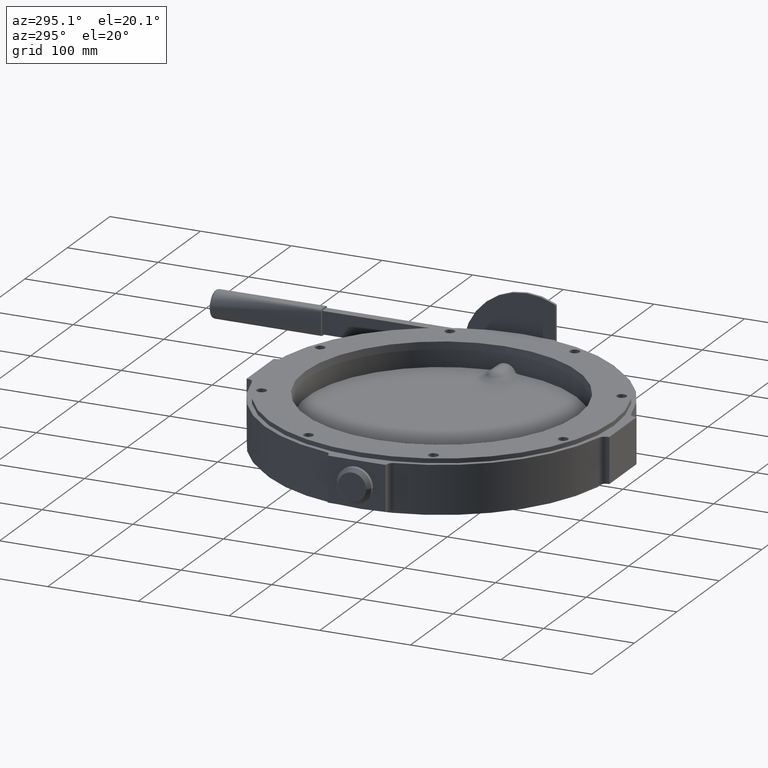
[diagram: clean part render]
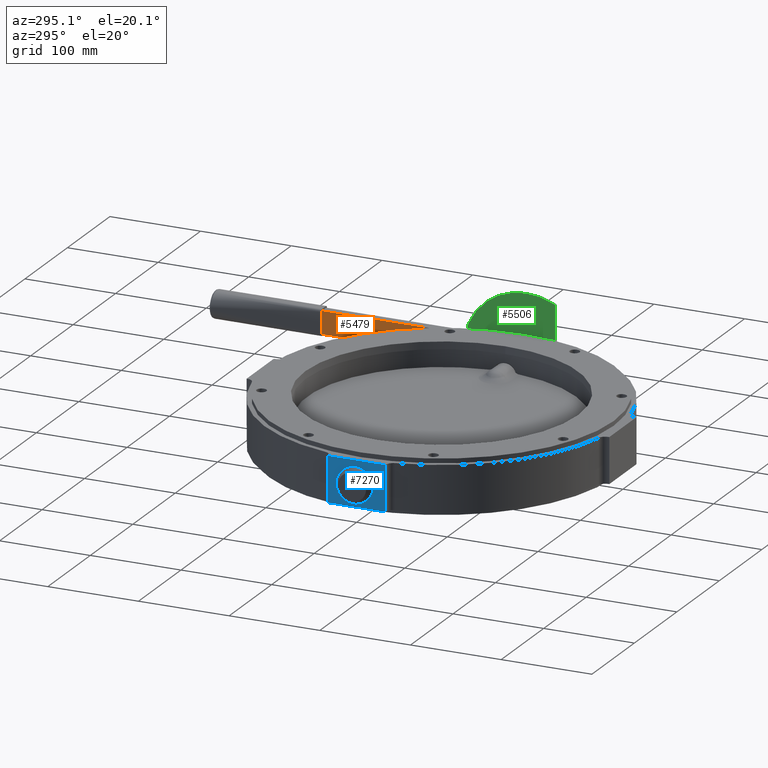
[diagram: same view with three faces highlighted in distinct colors, each labeled with its STEP entity id]
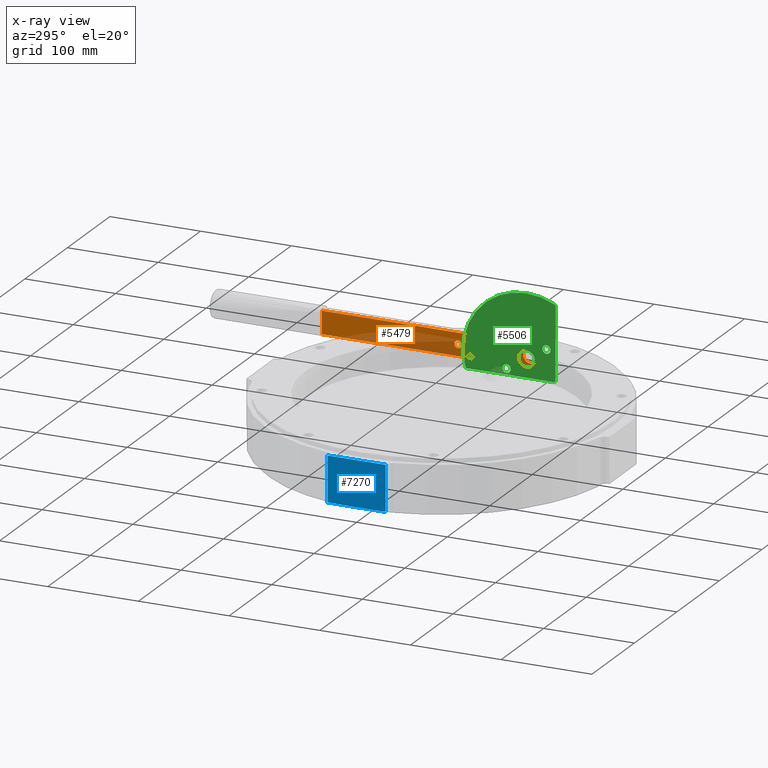
[diagram: x-ray of the same camera — body ghosted, the three highlighted faces saturated]
A machine part, auxiliary view with three faces highlighted in distinct colors.
The next image is the same camera in x-ray (body ghosted, the three faces saturated) — at least one of them is partly hidden behind the body in this view.
Their STEP definitions:

[orange] entity #5479 — the highlighted planar face has unit normal (1, 0, -0).
#870 = CARTESIAN_POINT ( 'NONE',  ( 209.4499999999999600, 229.9999999999999700, -12.50000000000000700 ) ) ;
#966 = CARTESIAN_POINT ( 'NONE',  ( 209.4500000000000200, 2.718098515041928400E-014, 12.50000000000001400 ) ) ;
#967 = CARTESIAN_POINT ( 'NONE',  ( 209.4500000000000200, 2.718098515041928400E-014, -12.50000000000002500 ) ) ;
#968 = CARTESIAN_POINT ( 'NONE',  ( 209.4499999999999600, 229.9999999999999700, 12.49999999999999600 ) ) ;
#1496 = VERTEX_POINT ( 'NONE', #1499 ) ;
#1498 = VERTEX_POINT ( 'NONE', #1501 ) ;
#1499 = CARTESIAN_POINT ( 'NONE',  ( 209.4500000000000200, 8.000000000000026600, -3.132754484151533400E-015 ) ) ;
#1500 = VERTEX_POINT ( 'NONE', #1503 ) ;
#1501 = CARTESIAN_POINT ( 'NONE',  ( 209.4500000000000200, 76.00000000000002800, -2.097046512262091200E-015 ) ) ;
#1503 = CARTESIAN_POINT ( 'NONE',  ( 209.4500000000000200, 58.00000000000002100, -4.880293244369943600E-015 ) ) ;
#2187 = FACE_BOUND ( 'NONE', #6375, .T. ) ;
#2189 = DIRECTION ( 'NONE',  ( 1.000000000000000000, 1.224646799147353000E-016, -2.330051680291211600E-017 ) ) ;
#2192 = PLANE ( 'NONE',  #6088 ) ;
#2193 = FACE_BOUND ( 'NONE', #6381, .T. ) ;
#2195 = CARTESIAN_POINT ( 'NONE',  ( 209.4500000000000200, 2.565022720814131000E-014, -4.880293244369943600E-015 ) ) ;
#2196 = FACE_BOUND ( 'NONE', #6285, .T. ) ;
#2198 = FACE_OUTER_BOUND ( 'NONE', #6269, .T. ) ;
#2199 = DIRECTION ( 'NONE',  ( -1.224646799147353000E-016, 1.000000000000000000, 0.0000000000000000000 ) ) ;
#3025 = AXIS2_PLACEMENT_3D ( 'NONE', #10534, #10535, #10536 ) ;
#3026 = VECTOR ( 'NONE', #10540, 1000.000000000000000 ) ;
#3027 = VECTOR ( 'NONE', #10544, 1000.000000000000000 ) ;
#3028 = CIRCLE ( 'NONE', #3065, 12.50000000000002000 ) ;
#3060 = CIRCLE ( 'NONE', #3061, 4.000000000000003600 ) ;
#3061 = AXIS2_PLACEMENT_3D ( 'NONE', #10530, #10531, #10532 ) ;
#3063 = CIRCLE ( 'NONE', #3025, 5.000000000000004400 ) ;
#3064 = VECTOR ( 'NONE', #10538, 1000.000000000000000 ) ;
#3065 = AXIS2_PLACEMENT_3D ( 'NONE', #10541, #10542, #10543 ) ;
#5479 = ADVANCED_FACE ( 'NONE', ( #2193, #2187, #2196, #2198 ), #2192, .F. ) ;
#5590 = ORIENTED_EDGE ( 'NONE', *, *, #6943, .F. ) ;
#5591 = ORIENTED_EDGE ( 'NONE', *, *, #6941, .T. ) ;
#5592 = ORIENTED_EDGE ( 'NONE', *, *, #6942, .F. ) ;
#6088 = AXIS2_PLACEMENT_3D ( 'NONE', #2195, #2189, #2199 ) ;
#6269 = EDGE_LOOP ( 'NONE', ( #6337, #6338, #6333, #6331 ) ) ;
#6285 = EDGE_LOOP ( 'NONE', ( #5590 ) ) ;
#6331 = ORIENTED_EDGE ( 'NONE', *, *, #6947, .F. ) ;
#6333 = ORIENTED_EDGE ( 'NONE', *, *, #6946, .F. ) ;
#6337 = ORIENTED_EDGE ( 'NONE', *, *, #6944, .F. ) ;
#6338 = ORIENTED_EDGE ( 'NONE', *, *, #6945, .F. ) ;
#6375 = EDGE_LOOP ( 'NONE', ( #5591 ) ) ;
#6381 = EDGE_LOOP ( 'NONE', ( #5592 ) ) ;
#6941 = EDGE_CURVE ( 'NONE', #1496, #1496, #12088, .T. ) ;
#6942 = EDGE_CURVE ( 'NONE', #1498, #1498, #3060, .T. ) ;
#6943 = EDGE_CURVE ( 'NONE', #1500, #1500, #3063, .T. ) ;
#6944 = EDGE_CURVE ( 'NONE', #7352, #7453, #10521, .T. ) ;
#6945 = EDGE_CURVE ( 'NONE', #7452, #7352, #10539, .T. ) ;
#6946 = EDGE_CURVE ( 'NONE', #7451, #7452, #3028, .T. ) ;
#6947 = EDGE_CURVE ( 'NONE', #7453, #7451, #10533, .T. ) ;
#7352 = VERTEX_POINT ( 'NONE', #870 ) ;
#7451 = VERTEX_POINT ( 'NONE', #966 ) ;
#7452 = VERTEX_POINT ( 'NONE', #967 ) ;
#7453 = VERTEX_POINT ( 'NONE', #968 ) ;
#10521 = LINE ( 'NONE', #10537, #3064 ) ;
#10525 = CARTESIAN_POINT ( 'NONE',  ( 209.4499999999999600, 350.0000000000000000, -12.49999999999999800 ) ) ;
#10526 = CARTESIAN_POINT ( 'NONE',  ( 209.4500000000000200, 2.565022720814130300E-014, -3.132754484151533400E-015 ) ) ;
#10527 = DIRECTION ( 'NONE',  ( 1.000000000000000000, 1.224646799147353000E-016, -2.330051680291211600E-017 ) ) ;
#10528 = DIRECTION ( 'NONE',  ( 0.0000000000000000000, 1.000000000000000000, 0.0000000000000000000 ) ) ;
#10529 = CARTESIAN_POINT ( 'NONE',  ( 209.4500000000000200, 2.718098515041928400E-014, 12.50000000000001400 ) ) ;
#10530 = CARTESIAN_POINT ( 'NONE',  ( 209.4500000000000200, 80.00000000000002800, -2.097046512262091200E-015 ) ) ;
#10531 = DIRECTION ( 'NONE',  ( -1.000000000000000000, -1.224646799147353000E-016, 2.330051680291211600E-017 ) ) ;
#10532 = DIRECTION ( 'NONE',  ( 0.0000000000000000000, -1.000000000000000000, 0.0000000000000000000 ) ) ;
#10533 = LINE ( 'NONE', #10529, #3027 ) ;
#10534 = CARTESIAN_POINT ( 'NONE',  ( 209.4500000000000200, 63.00000000000002800, -4.880293244369943600E-015 ) ) ;
#10535 = DIRECTION ( 'NONE',  ( -1.000000000000000000, -1.224646799147353000E-016, 2.330051680291211600E-017 ) ) ;
#10536 = DIRECTION ( 'NONE',  ( 0.0000000000000000000, -1.000000000000000000, 0.0000000000000000000 ) ) ;
#10537 = CARTESIAN_POINT ( 'NONE',  ( 209.4499999999999900, 229.9999999999999700, -4.880293244369943600E-015 ) ) ;
#10538 = DIRECTION ( 'NONE',  ( 2.330051680291211600E-017, 2.853490332116543700E-033, 1.000000000000000000 ) ) ;
#10539 = LINE ( 'NONE', #10525, #3026 ) ;
#10540 = DIRECTION ( 'NONE',  ( -1.586032892321652500E-016, 1.000000000000000000, 7.434529182757745400E-017 ) ) ;
#10541 = CARTESIAN_POINT ( 'NONE',  ( 209.4500000000000200, 2.565022720814131000E-014, -4.880293244369943600E-015 ) ) ;
#10542 = DIRECTION ( 'NONE',  ( 1.000000000000000000, 1.224646799147353000E-016, -2.330051680291211600E-017 ) ) ;
#10543 = DIRECTION ( 'NONE',  ( 0.0000000000000000000, 1.000000000000000000, 0.0000000000000000000 ) ) ;
#10544 = DIRECTION ( 'NONE',  ( 1.586032892321652500E-016, -1.000000000000000000, 7.434529182757745400E-017 ) ) ;
#11801 = AXIS2_PLACEMENT_3D ( 'NONE', #10526, #10527, #10528 ) ;
#12088 = CIRCLE ( 'NONE', #11801, 8.000000000000000000 ) ;

[blue] entity #7270 — the highlighted planar face has unit normal (1, 0, 0).
#806 = DIRECTION ( 'NONE',  ( 1.000000000000000000, 0.0000000000000000000, -0.0000000000000000000 ) ) ;
#807 = CARTESIAN_POINT ( 'NONE',  ( -200.0000000000000000, 32.00000000000000000, 25.00000000000000000 ) ) ;
#808 = FACE_BOUND ( 'NONE', #9466, .T. ) ;
#810 = FACE_OUTER_BOUND ( 'NONE', #9647, .T. ) ;
#811 = PLANE ( 'NONE',  #1338 ) ;
#813 = DIRECTION ( 'NONE',  ( -0.0000000000000000000, 0.0000000000000000000, -1.000000000000000000 ) ) ;
#894 = CARTESIAN_POINT ( 'NONE',  ( -200.0000000000000000, 32.00000000000000000, -25.00000000000000000 ) ) ;
#895 = CARTESIAN_POINT ( 'NONE',  ( -200.0000000000000000, -32.00000000000000000, 25.00000000000000000 ) ) ;
#897 = CARTESIAN_POINT ( 'NONE',  ( -200.0000000000000000, 32.00000000000000000, 25.00000000000000000 ) ) ;
#898 = CARTESIAN_POINT ( 'NONE',  ( -200.0000000000000000, -32.00000000000000000, -25.00000000000000000 ) ) ;
#1087 = VERTEX_POINT ( 'NONE', #1090 ) ;
#1090 = CARTESIAN_POINT ( 'NONE',  ( -200.0000000000000000, 0.0000000000000000000, -8.000000000000000000 ) ) ;
#1338 = AXIS2_PLACEMENT_3D ( 'NONE', #807, #806, #813 ) ;
#3548 = LINE ( 'NONE', #3557, #6173 ) ;
#3550 = LINE ( 'NONE', #3560, #6169 ) ;
#3554 = CARTESIAN_POINT ( 'NONE',  ( -200.0000000000000000, 0.0000000000000000000, 0.0000000000000000000 ) ) ;
#3555 = DIRECTION ( 'NONE',  ( 1.000000000000000000, 0.0000000000000000000, 0.0000000000000000000 ) ) ;
#3556 = DIRECTION ( 'NONE',  ( 0.0000000000000000000, 0.0000000000000000000, -1.000000000000000000 ) ) ;
#3557 = CARTESIAN_POINT ( 'NONE',  ( -200.0000000000000000, -32.00000000000000000, 25.00000000000000000 ) ) ;
#3558 = DIRECTION ( 'NONE',  ( -0.0000000000000000000, -0.0000000000000000000, -1.000000000000000000 ) ) ;
#3560 = CARTESIAN_POINT ( 'NONE',  ( -200.0000000000000000, 32.00000000000000000, 25.00000000000000000 ) ) ;
#3561 = DIRECTION ( 'NONE',  ( -0.0000000000000000000, -0.0000000000000000000, -1.000000000000000000 ) ) ;
#5548 = EDGE_CURVE ( 'NONE', #1087, #1087, #6170, .T. ) ;
#5549 = EDGE_CURVE ( 'NONE', #7380, #7383, #3548, .T. ) ;
#5550 = EDGE_CURVE ( 'NONE', #7382, #7379, #3550, .T. ) ;
#6167 = AXIS2_PLACEMENT_3D ( 'NONE', #3554, #3555, #3556 ) ;
#6169 = VECTOR ( 'NONE', #3561, 1000.000000000000000 ) ;
#6170 = CIRCLE ( 'NONE', #6167, 8.000000000000000000 ) ;
#6173 = VECTOR ( 'NONE', #3558, 1000.000000000000000 ) ;
#7091 = EDGE_CURVE ( 'NONE', #7382, #7380, #11917, .T. ) ;
#7124 = EDGE_CURVE ( 'NONE', #7379, #7383, #12148, .T. ) ;
#7270 = ADVANCED_FACE ( 'NONE', ( #808, #810 ), #811, .F. ) ;
#7379 = VERTEX_POINT ( 'NONE', #894 ) ;
#7380 = VERTEX_POINT ( 'NONE', #895 ) ;
#7382 = VERTEX_POINT ( 'NONE', #897 ) ;
#7383 = VERTEX_POINT ( 'NONE', #898 ) ;
#8486 = VECTOR ( 'NONE', #12182, 1000.000000000000000 ) ;
#9207 = ORIENTED_EDGE ( 'NONE', *, *, #7091, .F. ) ;
#9238 = ORIENTED_EDGE ( 'NONE', *, *, #5548, .T. ) ;
#9239 = ORIENTED_EDGE ( 'NONE', *, *, #5549, .F. ) ;
#9297 = ORIENTED_EDGE ( 'NONE', *, *, #7124, .T. ) ;
#9309 = ORIENTED_EDGE ( 'NONE', *, *, #5550, .T. ) ;
#9466 = EDGE_LOOP ( 'NONE', ( #9238 ) ) ;
#9647 = EDGE_LOOP ( 'NONE', ( #9297, #9239, #9207, #9309 ) ) ;
#10045 = VECTOR ( 'NONE', #11950, 1000.000000000000000 ) ;
#11917 = LINE ( 'NONE', #11948, #10045 ) ;
#11948 = CARTESIAN_POINT ( 'NONE',  ( -200.0000000000000000, 32.00000000000000000, 25.00000000000000000 ) ) ;
#11950 = DIRECTION ( 'NONE',  ( 0.0000000000000000000, -1.000000000000000000, 0.0000000000000000000 ) ) ;
#12148 = LINE ( 'NONE', #12180, #8486 ) ;
#12180 = CARTESIAN_POINT ( 'NONE',  ( -200.0000000000000000, 32.00000000000000000, -25.00000000000000000 ) ) ;
#12182 = DIRECTION ( 'NONE',  ( 0.0000000000000000000, -1.000000000000000000, 0.0000000000000000000 ) ) ;

[green] entity #5506 — the highlighted planar face has unit normal (1, 0, 0).
#860 = CARTESIAN_POINT ( 'NONE',  ( 0.0000000000000000000, -32.00000000000000000, 61.02458520956943700 ) ) ;
#865 = CARTESIAN_POINT ( 'NONE',  ( 0.0000000000000000000, -32.00000000000000000, -18.00000000000000400 ) ) ;
#871 = CARTESIAN_POINT ( 'NONE',  ( 0.0000000000000000000, -30.00000000000000000, -20.00000000000000400 ) ) ;
#969 = CARTESIAN_POINT ( 'NONE',  ( 0.0000000000000000000, 65.57438524302000400, -20.00000000000000000 ) ) ;
#971 = CARTESIAN_POINT ( 'NONE',  ( 0.0000000000000000000, -30.88235294117647100, 62.81942595102737000 ) ) ;
#973 = CARTESIAN_POINT ( 'NONE',  ( 0.0000000000000000000, 67.50304363252060100, -18.52941176470588400 ) ) ;
#1488 = VERTEX_POINT ( 'NONE', #1491 ) ;
#1490 = VERTEX_POINT ( 'NONE', #1493 ) ;
#1491 = CARTESIAN_POINT ( 'NONE',  ( 0.0000000000000000000, -22.00000000000000400, 8.999999999999998200 ) ) ;
#1493 = CARTESIAN_POINT ( 'NONE',  ( 0.0000000000000000000, 62.00000000000000000, -9.999999999999991100 ) ) ;
#1510 = VERTEX_POINT ( 'NONE', #1513 ) ;
#1512 = VERTEX_POINT ( 'NONE', #1515 ) ;
#1513 = CARTESIAN_POINT ( 'NONE',  ( 0.0000000000000000000, 22.00000000000000400, -17.99999999999999600 ) ) ;
#1515 = CARTESIAN_POINT ( 'NONE',  ( 0.0000000000000000000, 0.0000000000000000000, -9.000000000000000000 ) ) ;
#2340 = FACE_BOUND ( 'NONE', #6394, .T. ) ;
#2341 = FACE_BOUND ( 'NONE', #6308, .T. ) ;
#2342 = PLANE ( 'NONE',  #6121 ) ;
#2343 = FACE_BOUND ( 'NONE', #6286, .T. ) ;
#2344 = FACE_OUTER_BOUND ( 'NONE', #6288, .T. ) ;
#2345 = CARTESIAN_POINT ( 'NONE',  ( 0.0000000000000000000, 0.0000000000000000000, 0.0000000000000000000 ) ) ;
#2346 = FACE_BOUND ( 'NONE', #6271, .T. ) ;
#2347 = DIRECTION ( 'NONE',  ( 1.000000000000000000, 0.0000000000000000000, 0.0000000000000000000 ) ) ;
#2348 = DIRECTION ( 'NONE',  ( 0.0000000000000000000, 0.0000000000000000000, -1.000000000000000000 ) ) ;
#3046 = AXIS2_PLACEMENT_3D ( 'NONE', #10585, #10586, #10587 ) ;
#3049 = AXIS2_PLACEMENT_3D ( 'NONE', #10588, #10589, #10590 ) ;
#3050 = CIRCLE ( 'NONE', #3055, 2.000000000000001800 ) ;
#3051 = CIRCLE ( 'NONE', #3046, 4.499999999999999100 ) ;
#3052 = VECTOR ( 'NONE', #10592, 1000.000000000000000 ) ;
#3053 = CIRCLE ( 'NONE', #3049, 9.000000000000000000 ) ;
#3054 = CIRCLE ( 'NONE', #3056, 70.00000000000000000 ) ;
#3055 = AXIS2_PLACEMENT_3D ( 'NONE', #10593, #10594, #10595 ) ;
#3056 = AXIS2_PLACEMENT_3D ( 'NONE', #10598, #10599, #10600 ) ;
#3057 = CIRCLE ( 'NONE', #3059, 1.999999999999998200 ) ;
#3059 = AXIS2_PLACEMENT_3D ( 'NONE', #10602, #10603, #10604 ) ;
#3092 = VECTOR ( 'NONE', #10613, 1000.000000000000000 ) ;
#5506 = ADVANCED_FACE ( 'NONE', ( #2341, #2343, #2344, #2346, #2340 ), #2342, .F. ) ;
#5610 = ORIENTED_EDGE ( 'NONE', *, *, #6937, .T. ) ;
#5639 = ORIENTED_EDGE ( 'NONE', *, *, #6961, .T. ) ;
#5640 = ORIENTED_EDGE ( 'NONE', *, *, #6962, .T. ) ;
#5641 = ORIENTED_EDGE ( 'NONE', *, *, #6963, .F. ) ;
#5643 = ORIENTED_EDGE ( 'NONE', *, *, #6936, .T. ) ;
#5700 = ORIENTED_EDGE ( 'NONE', *, *, #6965, .F. ) ;
#5705 = ORIENTED_EDGE ( 'NONE', *, *, #6935, .T. ) ;
#5750 = ORIENTED_EDGE ( 'NONE', *, *, #6970, .F. ) ;
#5765 = ORIENTED_EDGE ( 'NONE', *, *, #6964, .T. ) ;
#5798 = ORIENTED_EDGE ( 'NONE', *, *, #6966, .T. ) ;
#6121 = AXIS2_PLACEMENT_3D ( 'NONE', #2345, #2347, #2348 ) ;
#6271 = EDGE_LOOP ( 'NONE', ( #5643 ) ) ;
#6286 = EDGE_LOOP ( 'NONE', ( #5640 ) ) ;
#6288 = EDGE_LOOP ( 'NONE', ( #5641, #5765, #5700, #5798, #5750, #5705 ) ) ;
#6308 = EDGE_LOOP ( 'NONE', ( #5639 ) ) ;
#6394 = EDGE_LOOP ( 'NONE', ( #5610 ) ) ;
#6935 = EDGE_CURVE ( 'NONE', #7354, #7353, #11796, .T. ) ;
#6936 = EDGE_CURVE ( 'NONE', #1488, #1488, #11818, .T. ) ;
#6937 = EDGE_CURVE ( 'NONE', #1490, #1490, #12039, .T. ) ;
#6961 = EDGE_CURVE ( 'NONE', #1510, #1510, #3051, .T. ) ;
#6962 = EDGE_CURVE ( 'NONE', #1512, #1512, #3053, .T. ) ;
#6963 = EDGE_CURVE ( 'NONE', #7351, #7353, #10581, .T. ) ;
#6964 = EDGE_CURVE ( 'NONE', #7351, #7456, #3050, .T. ) ;
#6965 = EDGE_CURVE ( 'NONE', #7458, #7456, #3054, .T. ) ;
#6966 = EDGE_CURVE ( 'NONE', #7458, #7454, #3057, .T. ) ;
#6970 = EDGE_CURVE ( 'NONE', #7354, #7454, #10601, .T. ) ;
#7351 = VERTEX_POINT ( 'NONE', #860 ) ;
#7353 = VERTEX_POINT ( 'NONE', #865 ) ;
#7354 = VERTEX_POINT ( 'NONE', #871 ) ;
#7454 = VERTEX_POINT ( 'NONE', #969 ) ;
#7456 = VERTEX_POINT ( 'NONE', #971 ) ;
#7458 = VERTEX_POINT ( 'NONE', #973 ) ;
#10507 = CARTESIAN_POINT ( 'NONE',  ( 0.0000000000000000000, -30.00000000000000000, -18.00000000000000400 ) ) ;
#10508 = DIRECTION ( 'NONE',  ( -1.000000000000000000, -0.0000000000000000000, -0.0000000000000000000 ) ) ;
#10509 = DIRECTION ( 'NONE',  ( 0.0000000000000000000, 0.0000000000000000000, -1.000000000000000000 ) ) ;
#10510 = CARTESIAN_POINT ( 'NONE',  ( 0.0000000000000000000, -22.00000000000000400, 13.49999999999999600 ) ) ;
#10511 = DIRECTION ( 'NONE',  ( 1.000000000000000000, 0.0000000000000000000, 0.0000000000000000000 ) ) ;
#10512 = DIRECTION ( 'NONE',  ( 0.0000000000000000000, 0.0000000000000000000, -1.000000000000000000 ) ) ;
#10513 = CARTESIAN_POINT ( 'NONE',  ( 0.0000000000000000000, 62.00000000000000000, -6.999999999999992000 ) ) ;
#10514 = DIRECTION ( 'NONE',  ( 1.000000000000000000, 0.0000000000000000000, 0.0000000000000000000 ) ) ;
#10515 = DIRECTION ( 'NONE',  ( 0.0000000000000000000, 0.0000000000000000000, -1.000000000000000000 ) ) ;
#10581 = LINE ( 'NONE', #10591, #3052 ) ;
#10585 = CARTESIAN_POINT ( 'NONE',  ( 0.0000000000000000000, 22.00000000000000400, -13.49999999999999600 ) ) ;
#10586 = DIRECTION ( 'NONE',  ( 1.000000000000000000, 0.0000000000000000000, 0.0000000000000000000 ) ) ;
#10587 = DIRECTION ( 'NONE',  ( 0.0000000000000000000, 0.0000000000000000000, -1.000000000000000000 ) ) ;
#10588 = CARTESIAN_POINT ( 'NONE',  ( 0.0000000000000000000, 0.0000000000000000000, 0.0000000000000000000 ) ) ;
#10589 = DIRECTION ( 'NONE',  ( 1.000000000000000000, 0.0000000000000000000, 0.0000000000000000000 ) ) ;
#10590 = DIRECTION ( 'NONE',  ( 0.0000000000000000000, 0.0000000000000000000, -1.000000000000000000 ) ) ;
#10591 = CARTESIAN_POINT ( 'NONE',  ( 0.0000000000000000000, -32.00000000000000000, 62.25752966509352900 ) ) ;
#10592 = DIRECTION ( 'NONE',  ( 0.0000000000000000000, 0.0000000000000000000, -1.000000000000000000 ) ) ;
#10593 = CARTESIAN_POINT ( 'NONE',  ( 0.0000000000000000000, -30.00000000000000000, 61.02458520956943700 ) ) ;
#10594 = DIRECTION ( 'NONE',  ( -1.000000000000000000, -0.0000000000000000000, -0.0000000000000000000 ) ) ;
#10595 = DIRECTION ( 'NONE',  ( 0.0000000000000000000, -3.469446951953611000E-015, -1.000000000000000000 ) ) ;
#10598 = CARTESIAN_POINT ( 'NONE',  ( 0.0000000000000000000, 0.0000000000000000000, 0.0000000000000000000 ) ) ;
#10599 = DIRECTION ( 'NONE',  ( 1.000000000000000000, 0.0000000000000000000, 0.0000000000000000000 ) ) ;
#10600 = DIRECTION ( 'NONE',  ( 0.0000000000000000000, 0.0000000000000000000, -1.000000000000000000 ) ) ;
#10601 = LINE ( 'NONE', #10612, #3092 ) ;
#10602 = CARTESIAN_POINT ( 'NONE',  ( 0.0000000000000000000, 65.57438524302000400, -18.00000000000000000 ) ) ;
#10603 = DIRECTION ( 'NONE',  ( -1.000000000000000000, -0.0000000000000000000, -0.0000000000000000000 ) ) ;
#10604 = DIRECTION ( 'NONE',  ( 0.0000000000000000000, 0.0000000000000000000, -1.000000000000000000 ) ) ;
#10612 = CARTESIAN_POINT ( 'NONE',  ( 0.0000000000000000000, -32.00000000000000000, -20.00000000000000400 ) ) ;
#10613 = DIRECTION ( 'NONE',  ( 0.0000000000000000000, 1.000000000000000000, 3.501590172739245600E-017 ) ) ;
#11796 = CIRCLE ( 'NONE', #11844, 2.000000000000001800 ) ;
#11798 = AXIS2_PLACEMENT_3D ( 'NONE', #10513, #10514, #10515 ) ;
#11818 = CIRCLE ( 'NONE', #11848, 4.499999999999999100 ) ;
#11844 = AXIS2_PLACEMENT_3D ( 'NONE', #10507, #10508, #10509 ) ;
#11848 = AXIS2_PLACEMENT_3D ( 'NONE', #10510, #10511, #10512 ) ;
#12039 = CIRCLE ( 'NONE', #11798, 2.999999999999999100 ) ;